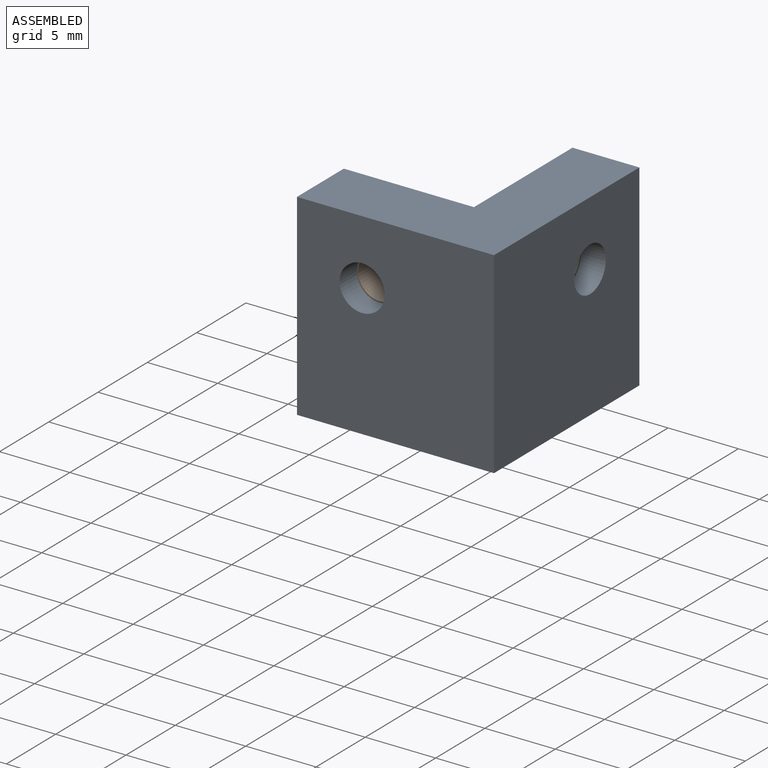
[diagram: assembled view]
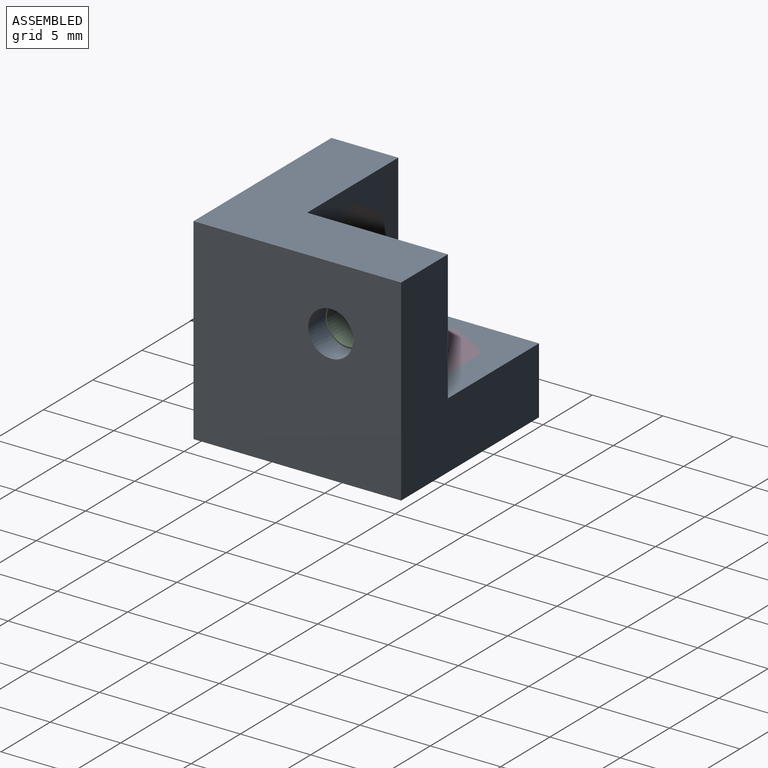
[diagram: assembled view, second angle]
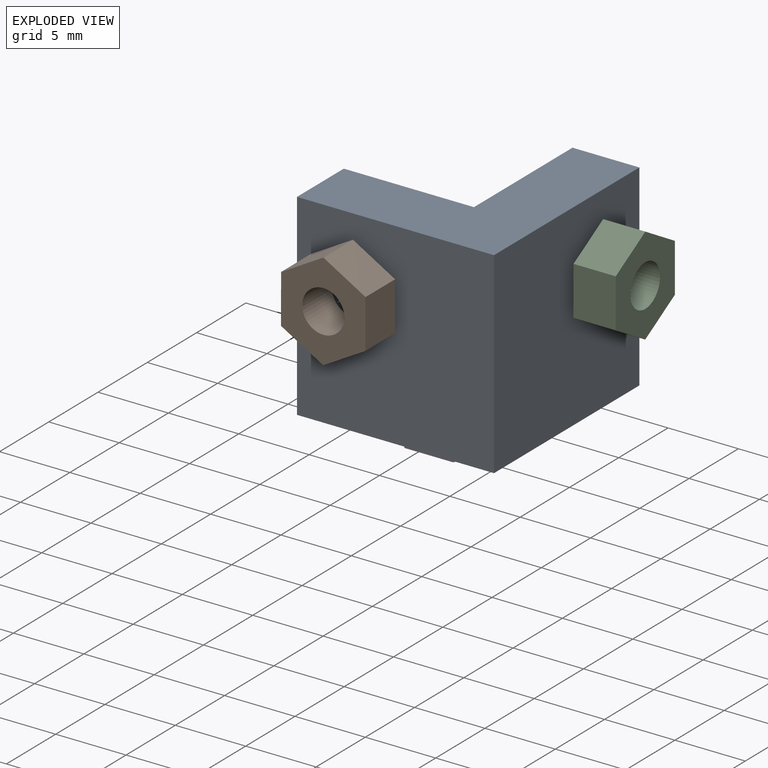
[diagram: exploded view]
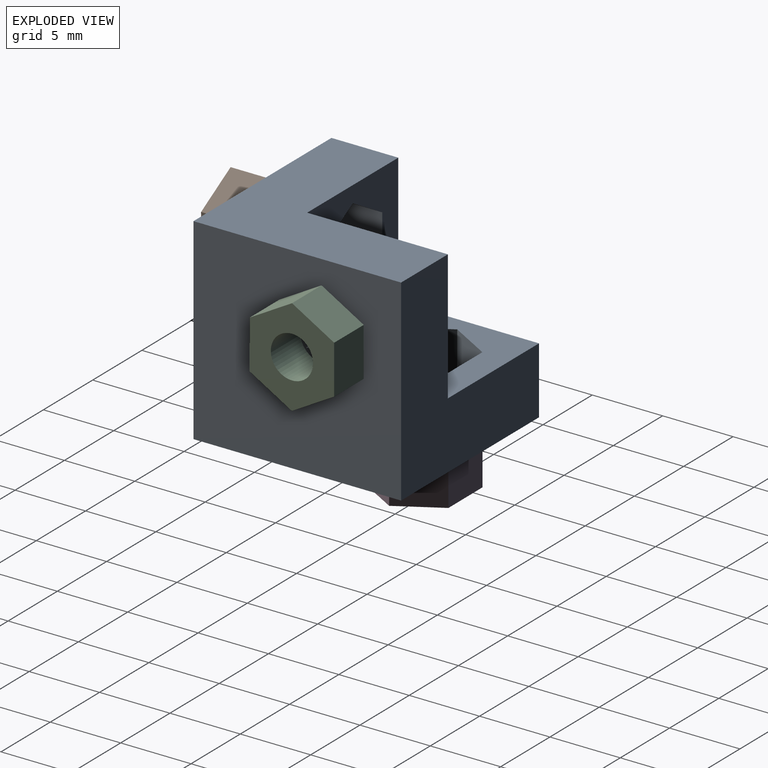
[diagram: exploded view, second angle]
ASSEMBLY  parts=4 mates=3
PART A: 33 faces, bbox 14x14.8x14 mm
  f0: plane 9.25x9.25mm, normal (0,1,0), area 54.4mm2, adj f1,f2,f3,f6,f25,f26,f27,f28
  f1: plane 10x9.25mm, normal (0,0,1), area 61.3mm2, adj f0,f2,f3,f7,f16,f17,f18,f19
  f2: plane 10x9.25mm, normal (-1,0,0), area 61.3mm2, adj f0,f1,f6,f7,f8,f9,f10,f11
  f3: plane 14.75x14mm, normal (-1,0,0), area 114mm2, adj f0,f1,f4,f6,f7,f24
  f4: plane 14.75x14mm, normal (0,0,-1), area 198.5mm2, adj f3,f5,f7,f23,f24
  f5: plane 14.75x14mm, normal (1,0,0), area 198.5mm2, adj f4,f6,f7,f15,f24
  f6: plane 14.75x14mm, normal (0,0,1), area 114mm2, adj f0,f2,f3,f5,f7,f24
  f7: plane 14x14mm, normal (0,1,0), area 110.4mm2, adj f1,f2,f3,f4,f5,f6
  f8: plane 3x3mm, normal (0,-0.5,0.87), area 10.4mm2, adj f2,f9,f13,f14
  f9: plane 3x3mm, normal (0,0.5,0.87), area 10.4mm2, adj f2,f8,f10,f14
  f10: plane 3.46x3mm, normal (0,1,0), area 10.4mm2, adj f2,f9,f11,f14
  f11: plane 3x3mm, normal (0,0.5,-0.87), area 10.4mm2, adj f2,f10,f12,f14
  f12: plane 3x3mm, normal (0,-0.5,-0.87), area 10.4mm2, adj f2,f11,f13,f14
  f13: plane 3.46x3mm, normal (0,-1,0), area 10.4mm2, adj f2,f8,f12,f14
  f14: plane 6.93x6mm, normal (-1,0,0), area 23.1mm2, adj f8,f9,f10,f11,f12,f13,f15
  f15: cylinder r=1.6mm len=3.2mm, axis (-1,0,0), area 17.6mm2, adj f5,f14
  f16: plane 3x3mm, normal (-0.87,0.5,0), area 10.4mm2, adj f1,f17,f21,f22
  f17: plane 3x3mm, normal (-0.87,-0.5,0), area 10.4mm2, adj f1,f16,f18,f22
  f18: plane 3.46x3mm, normal (0,-1,0), area 10.4mm2, adj f1,f17,f19,f22
  f19: plane 3x3mm, normal (0.87,-0.5,0), area 10.4mm2, adj f1,f18,f20,f22
  f20: plane 3x3mm, normal (0.87,0.5,0), area 10.4mm2, adj f1,f19,f21,f22
  f21: plane 3.46x3mm, normal (0,1,0), area 10.4mm2, adj f1,f16,f20,f22
  f22: plane 6.93x6mm, normal (0,0,1), area 23.1mm2, adj f16,f17,f18,f19,f20,f21,f23
  f23: cylinder r=1.6mm len=3.2mm, axis (0,0,1), area 17.6mm2, adj f4,f22
  f24: plane 14x14mm, normal (0,-1,0), area 188mm2, adj f3,f4,f5,f6,f32
  f25: plane 3x3mm, normal (-0.5,0,0.87), area 10.4mm2, adj f0,f26,f30,f31
  f26: plane 3x3mm, normal (0.5,0,0.87), area 10.4mm2, adj f0,f25,f27,f31
  f27: plane 3.46x3mm, normal (1,0,0), area 10.4mm2, adj f0,f26,f28,f31
  f28: plane 3x3mm, normal (0.5,0,-0.87), area 10.4mm2, adj f0,f27,f29,f31
  f29: plane 3x3mm, normal (-0.5,0,-0.87), area 10.4mm2, adj f0,f28,f30,f31
  f30: plane 3.46x3mm, normal (-1,0,0), area 10.4mm2, adj f0,f25,f29,f31
  f31: plane 6.93x6mm, normal (0,1,0), area 23.1mm2, adj f25,f26,f27,f28,f29,f30,f32
  f32: cylinder r=1.6mm len=3.2mm, axis (0,1,0), area 17.6mm2, adj f24,f31
PART B: 9 faces, bbox 6.9x6x3 mm
  f0: plane 3.46x3mm, normal (0,1,0), area 10.4mm2, adj f1,f6,f7,f8
  f1: plane 3x3mm, normal (-0.87,0.5,0), area 10.4mm2, adj f0,f2,f7,f8
  f2: plane 3x3mm, normal (-0.87,-0.5,0), area 10.4mm2, adj f1,f3,f7,f8
  f3: plane 3.46x3mm, normal (0,-1,0), area 10.4mm2, adj f2,f4,f7,f8
  f4: plane 3x3mm, normal (0.87,-0.5,0), area 10.4mm2, adj f3,f6,f7,f8
  f5: cylinder r=1.5mm len=3mm, axis (0,0,-1), area 28.3mm2, adj f7,f8
  f6: plane 3x3mm, normal (0.87,0.5,0), area 10.4mm2, adj f0,f4,f7,f8
  f7: plane 6.93x6.01mm, normal (0,0,1), area 24.1mm2, adj f0,f1,f2,f3,f4,f5,f6
  f8: plane 6.93x6.01mm, normal (0,0,-1), area 24.1mm2, adj f0,f1,f2,f3,f4,f5,f6
PART C: same geometry as B
PART D: same geometry as B
PLACE A t=(-3.41,10.54,6.58)mm
PLACE B rot(axis=(-0.58,-0.58,-0.58),120deg) t=(-12.79,-2.46,15.95)mm
PLACE C rot(axis=(0,-1,0),90deg) t=(-5.16,5.53,15.95)mm
PLACE D t=(-12.78,5.55,8.33)mm
MATE fastened D.f8 <-> A.f22  axis (0,0,-1) through (-16.25,5.54,8.33)mm
MATE fastened C.f8 <-> A.f14  axis (1,0,0) through (-5.16,5.54,19.41)mm
MATE fastened B.f8 <-> A.f31  axis (0,-1,0) through (-12.78,-2.46,19.41)mm
